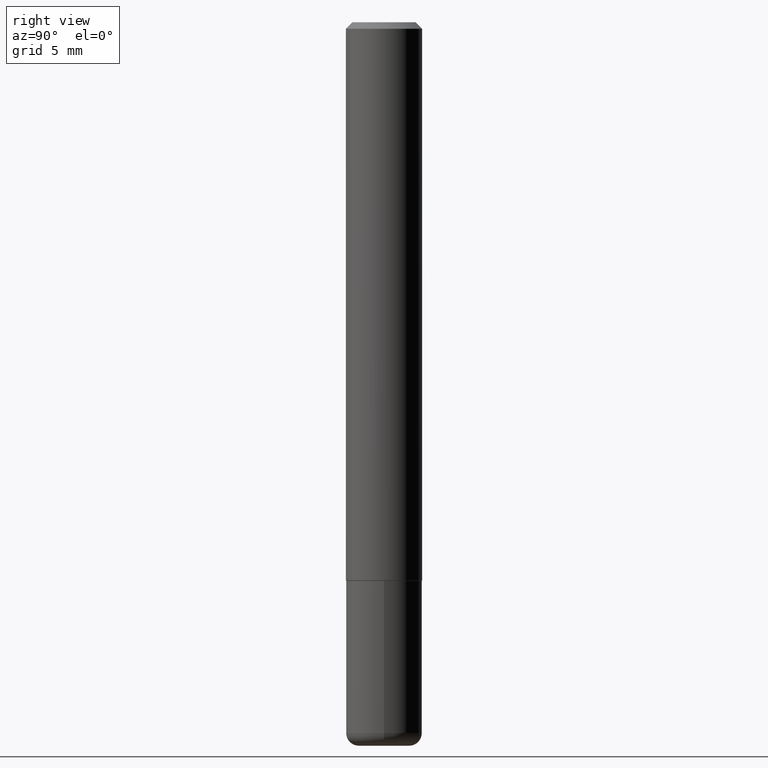
[diagram: clean part render]
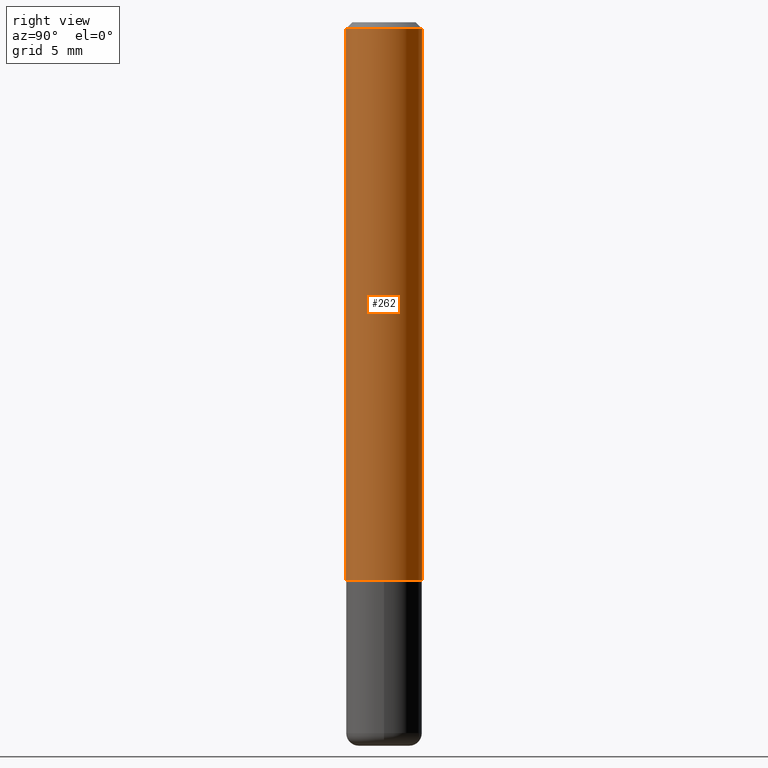
[diagram: same view with one face highlighted and labeled with its STEP entity id]
A machine part, right view. The second image highlights one B-rep face of the part: STEP entity #262.
In plain terms, the highlighted cylindrical surface (partial cylindrical patch) has radius 2.9997 mm, axis along (-0, 0, 1).
Its self-contained STEP definition (entity closure, byte-faithful):
#8 = VECTOR ( 'NONE', #156, 39.37007874015748143 ) ;
#17 = DIRECTION ( 'NONE',  ( -6.982962677686265922E-15, -1.000000000000000000, 3.502809002785596439E-15 ) ) ;
#36 = AXIS2_PLACEMENT_3D ( 'NONE', #90, #315, #186 ) ;
#54 = EDGE_LOOP ( 'NONE', ( #223, #100, #241, #174 ) ) ;
#90 = CARTESIAN_POINT ( 'NONE',  ( 4.220145447828595278E-29, -6.064413226522701602E-15, -1.731299999999999839 ) ) ;
#95 = LINE ( 'NONE', #406, #8 ) ;
#100 = ORIENTED_EDGE ( 'NONE', *, *, #254, .T. ) ;
#130 = CARTESIAN_POINT ( 'NONE',  ( 0.000000000000000000, 0.000000000000000000, 0.000000000000000000 ) ) ;
#147 = AXIS2_PLACEMENT_3D ( 'NONE', #391, #357, #268 ) ;
#152 = CARTESIAN_POINT ( 'NONE',  ( 8.391509709327013699E-16, 0.1180999999999942790, -1.731300000000000505 ) ) ;
#156 = DIRECTION ( 'NONE',  ( -2.437558740731586568E-29, 3.502809002785596045E-15, 1.000000000000000000 ) ) ;
#160 = LINE ( 'NONE', #288, #243 ) ;
#174 = ORIENTED_EDGE ( 'NONE', *, *, #328, .F. ) ;
#181 = CIRCLE ( 'NONE', #36, 0.1181000000000003158 ) ;
#186 = DIRECTION ( 'NONE',  ( -6.982962677686265922E-15, -1.000000000000000000, 4.626330217890357503E-15 ) ) ;
#206 = AXIS2_PLACEMENT_3D ( 'NONE', #130, #338, #17 ) ;
#217 = VERTEX_POINT ( 'NONE', #152 ) ;
#223 = ORIENTED_EDGE ( 'NONE', *, *, #307, .T. ) ;
#225 = VERTEX_POINT ( 'NONE', #343 ) ;
#241 = ORIENTED_EDGE ( 'NONE', *, *, #403, .F. ) ;
#243 = VECTOR ( 'NONE', #286, 39.37007874015748143 ) ;
#254 = EDGE_CURVE ( 'NONE', #217, #225, #160, .T. ) ;
#255 = CARTESIAN_POINT ( 'NONE',  ( -8.102248135368175393E-16, -0.1181000000000001077, -0.01999999999999966388 ) ) ;
#262 = ADVANCED_FACE ( 'NONE', ( #290 ), #279, .T. ) ;
#268 = DIRECTION ( 'NONE',  ( -6.982962677686265922E-15, -1.000000000000000000, 3.505890868245044514E-15 ) ) ;
#279 = CYLINDRICAL_SURFACE ( 'NONE', #206, 0.1181000000000001632 ) ;
#286 = DIRECTION ( 'NONE',  ( -2.437558740731586568E-29, 3.502809002785596045E-15, 1.000000000000000000 ) ) ;
#287 = VERTEX_POINT ( 'NONE', #255 ) ;
#288 = CARTESIAN_POINT ( 'NONE',  ( 8.391509709326793804E-16, 0.1181000000000001632, -4.136817432289794904E-16 ) ) ;
#290 = FACE_OUTER_BOUND ( 'NONE', #54, .T. ) ;
#307 = EDGE_CURVE ( 'NONE', #321, #217, #181, .T. ) ;
#315 = DIRECTION ( 'NONE',  ( -2.437558740731586288E-29, 3.502809002785596045E-15, 1.000000000000000000 ) ) ;
#321 = VERTEX_POINT ( 'NONE', #377 ) ;
#328 = EDGE_CURVE ( 'NONE', #321, #287, #95, .T. ) ;
#338 = DIRECTION ( 'NONE',  ( -2.437558740731586288E-29, 3.502809002785596045E-15, 1.000000000000000000 ) ) ;
#343 = CARTESIAN_POINT ( 'NONE',  ( 8.246878922347486570E-16, 0.1180999999999999689, -0.02000000000000048961 ) ) ;
#357 = DIRECTION ( 'NONE',  ( -2.437558740731586288E-29, 3.502809002785596045E-15, 1.000000000000000000 ) ) ;
#374 = CIRCLE ( 'NONE', #147, 0.1181000000000000383 ) ;
#377 = CARTESIAN_POINT ( 'NONE',  ( -8.246878922347080307E-16, -0.1181000000000063804, -1.731299999999999395 ) ) ;
#391 = CARTESIAN_POINT ( 'NONE',  ( 4.875117481463191354E-31, -7.005618005571218813E-17, -0.02000000000000007674 ) ) ;
#403 = EDGE_CURVE ( 'NONE', #287, #225, #374, .T. ) ;
#406 = CARTESIAN_POINT ( 'NONE',  ( -8.246878922347491501E-16, -0.1181000000000001632, 4.136817432289794904E-16 ) ) ;